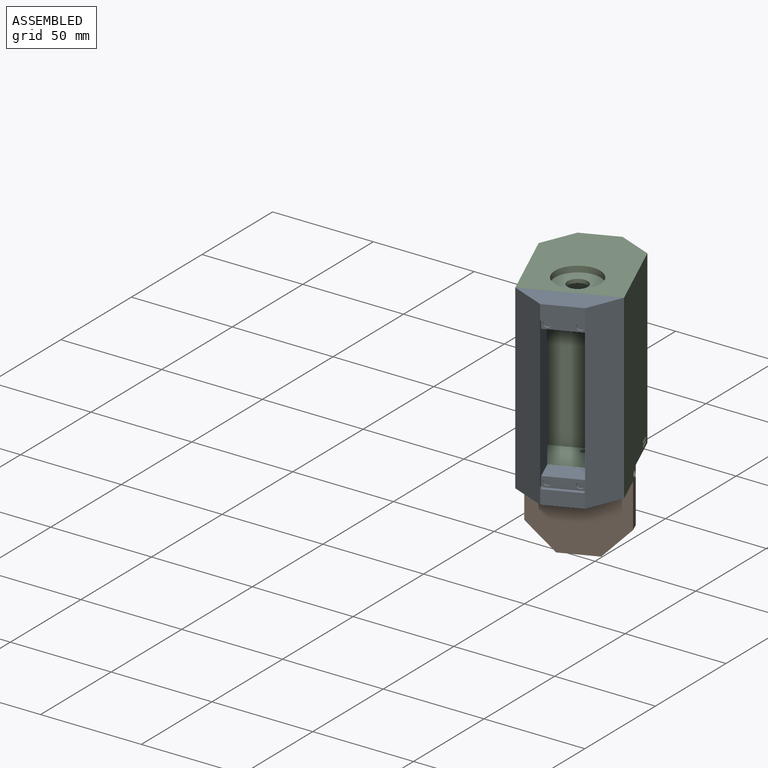
[diagram: assembled view]
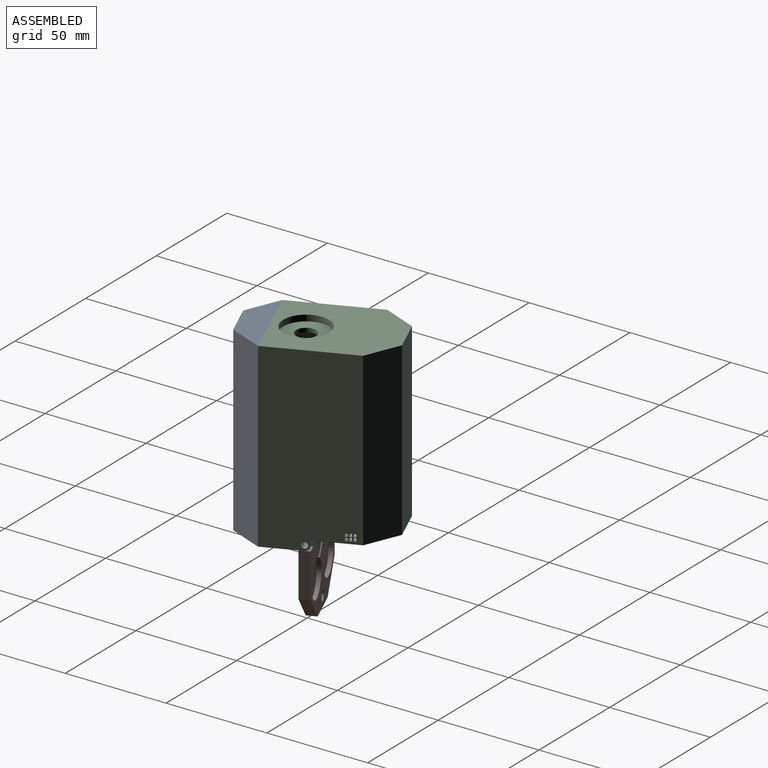
[diagram: assembled view, second angle]
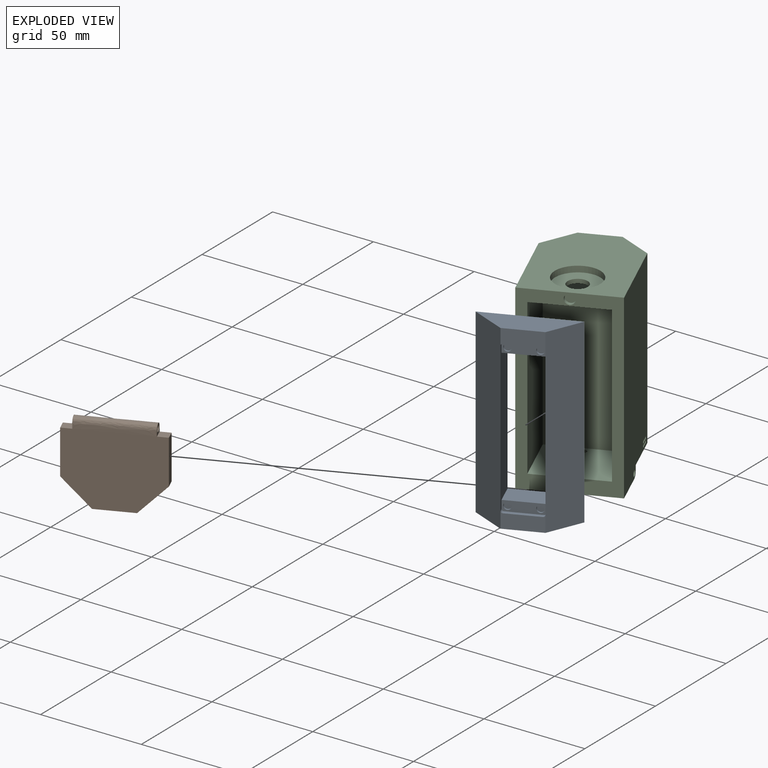
[diagram: exploded view]
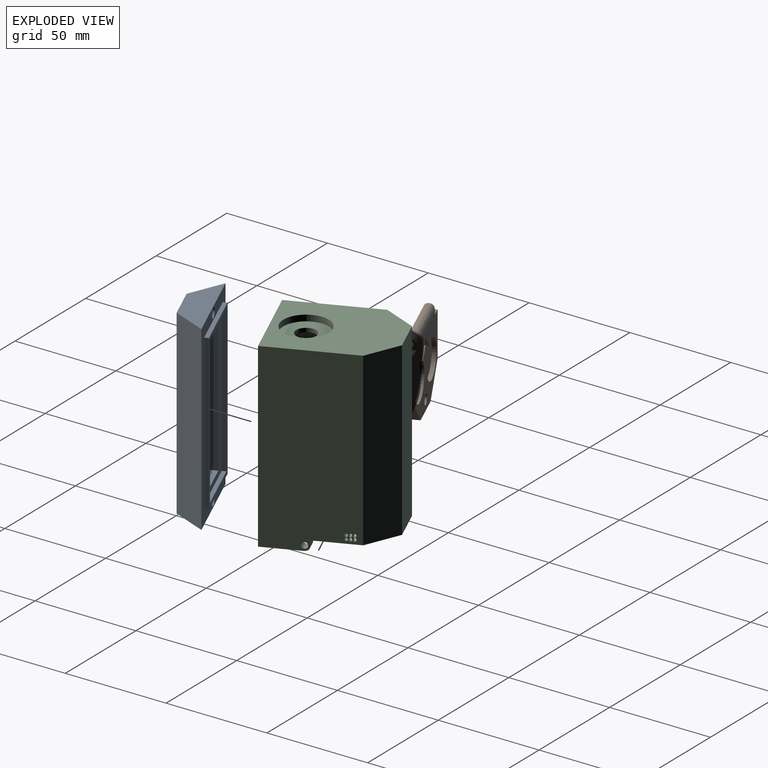
[diagram: exploded view, second angle]
ASSEMBLY  parts=3 mates=2
PART A: 41 faces, bbox 41.8x24.5x90 mm
  f0: plane 90x41.82mm, normal (-0.38,0.92,0), area 1341.6mm2, adj f2,f3,f5,f7,f28,f29,f30,f35
  f1: plane 17.32x8mm, normal (0.38,-0.92,0), area 131.7mm2, adj f3,f5,f7,f16,f17,f18
  f2: plane 41.82x24.5mm, normal (0,0,-1), area 424.4mm2, adj f0,f3,f4,f5
  f3: plane 90x17.32mm, normal (-0.38,-0.92,0), area 1687.5mm2, adj f0,f1,f2,f4,f7,f8
  f4: plane 17.32x8mm, normal (0.38,-0.92,0), area 131.7mm2, adj f2,f3,f5,f12,f13,f14
  f5: plane 90x17.32mm, normal (0.92,-0.38,0), area 1687.5mm2, adj f0,f1,f2,f4,f7,f10
  f6: plane 72.8x28.7mm, normal (-0.38,0.92,0), area 1024.1mm2, adj f8,f9,f10,f11,f31,f32,f33,f34
  f7: plane 41.82x24.5mm, normal (0,0,1), area 424.4mm2, adj f0,f1,f3,f5
  f8: plane 74x12.25mm, normal (0.92,0.38,0), area 891mm2, adj f3,f6,f9,f11,f12,f15,f18,f19
  f9: plane 21.63x17.58mm, normal (0,0,1), area 211.1mm2, adj f6,f8,f10,f15
  f10: plane 74x12.25mm, normal (-0.92,-0.38,0), area 891mm2, adj f5,f6,f9,f11,f14,f15,f16,f19
  f11: plane 21.63x17.58mm, normal (0,0,-1), area 211.1mm2, adj f6,f8,f10,f19
  f12: cylinder r=1mm len=2.23mm, axis (0.38,-0.92,0), area 3.1mm2, adj f4,f8,f13,f15
  f13: plane 16.24x8.26mm, normal (0,0,1), area 33.5mm2, adj f4,f12,f14,f15
  f14: cylinder r=1mm len=2.23mm, axis (0.38,-0.92,0), area 3.1mm2, adj f4,f10,f13,f15
  f15: plane 17.32x7.18mm, normal (0.38,-0.92,0), area 74.1mm2, adj f8,f9,f10,f12,f13,f14,f24,f26
  f16: cylinder r=1mm len=2.23mm, axis (0.38,-0.92,0), area 3.1mm2, adj f1,f10,f17,f19
  f17: plane 16.24x8.26mm, normal (0,0,-1), area 33.5mm2, adj f1,f16,f18,f19
  f18: cylinder r=1mm len=2.23mm, axis (0.38,-0.92,0), area 3.1mm2, adj f1,f8,f17,f19
  f19: plane 17.32x7.18mm, normal (0.38,-0.92,0), area 74.1mm2, adj f8,f10,f11,f16,f17,f18,f20,f22
  f20: cylinder r=1.75mm len=3.62mm, axis (0.38,-0.92,0), area 11mm2, adj f19,f21
  f21: plane 3.5x3.23mm, normal (0.38,-0.92,0), area 9.6mm2, adj f20
  f22: cylinder r=1.75mm len=3.62mm, axis (0.38,-0.92,0), area 11mm2, adj f19,f23
  f23: plane 3.5x3.23mm, normal (0.38,-0.92,0), area 9.6mm2, adj f22
  f24: cylinder r=1.75mm len=3.62mm, axis (0.38,-0.92,0), area 11mm2, adj f15,f25
  f25: plane 3.5x3.23mm, normal (0.38,-0.92,0), area 9.6mm2, adj f24
  f26: cylinder r=1.75mm len=3.62mm, axis (0.38,-0.92,0), area 11mm2, adj f15,f27
  f27: plane 3.5x3.23mm, normal (0.38,-0.92,0), area 9.6mm2, adj f26
  f28: plane 76.8x1.85mm, normal (0.92,0.38,0), area 153.6mm2, adj f0,f29,f35,f36
  f29: plane 33.16x15.27mm, normal (0,0,-1), area 70.1mm2, adj f0,f28,f30,f36
  f30: plane 76.8x1.85mm, normal (-0.92,-0.38,0), area 153.6mm2, adj f0,f29,f35,f36
  f31: plane 29.47x13.74mm, normal (0,0,1), area 62.1mm2, adj f6,f32,f34,f36
  f32: plane 72.8x1.85mm, normal (-0.92,-0.38,0), area 145.6mm2, adj f6,f31,f33,f36
  f33: plane 29.47x13.74mm, normal (0,0,-1), area 62.1mm2, adj f6,f32,f34,f36
  f34: plane 72.8x1.85mm, normal (0.92,0.38,0), area 145.6mm2, adj f6,f31,f33,f36
  f35: plane 33.16x15.27mm, normal (0,0,1), area 70.1mm2, adj f0,f28,f30,f36
  f36: plane 76.8x32.4mm, normal (-0.38,0.92,0), area 431.5mm2, adj f28,f29,f30,f31,f32,f33,f34,f35
  f37: cylinder r=2.5mm len=5.38mm, axis (-0.38,0.92,0), area 31.4mm2, adj f0,f38
  f38: plane 5x4.62mm, normal (-0.38,0.92,0), area 19.6mm2, adj f37
  f39: cylinder r=2.5mm len=5.38mm, axis (-0.38,0.92,0), area 31.4mm2, adj f0,f40
  f40: plane 5x4.62mm, normal (-0.38,0.92,0), area 19.6mm2, adj f39
PART B: 24 faces, bbox 50.9x48.8x5.7 mm
  f0: plane 5x4.62mm, normal (0.38,-0.92,0), area 25mm2, adj f4,f6,f16,f19
  f1: plane 5x4.62mm, normal (0.38,-0.92,0), area 25mm2, adj f4,f7,f16,f20
  f2: cylinder r=9.15mm len=18.3mm, axis (0,0,-1), area 110.1mm2, adj f4,f11,f13,f14
  f3: cylinder r=9.15mm len=18.3mm, axis (0,0,-1), area 110.1mm2, adj f4,f11,f12,f15
  f4: plane 50.19x44.71mm, normal (0,0,1), area 828.8mm2, adj f0,f1,f2,f3,f5,f6,f7,f8
  f5: cylinder r=1.5mm len=2.7mm, axis (0,0,1), area 7.5mm2, adj f4,f11,f14,f15
  f6: plane 20.21x8.37mm, normal (0.92,0.38,0), area 109.4mm2, adj f0,f4,f10,f16
  f7: plane 20.21x8.37mm, normal (-0.92,-0.38,0), area 109.4mm2, adj f1,f4,f8,f16
  f8: plane 17.32x7.18mm, normal (-0.92,0.38,0), area 93.8mm2, adj f4,f7,f9,f16
  f9: plane 17.32x7.18mm, normal (-0.38,0.92,0), area 93.8mm2, adj f4,f8,f10,f16
  f10: plane 17.32x7.18mm, normal (0.38,0.92,0), area 93.8mm2, adj f4,f6,f9,f16
  f11: plane 39.21x27.02mm, normal (0,0,1), area 566.2mm2, adj f2,f3,f5,f12,f13,f14,f15
  f12: plane 6.41x2.71mm, normal (0.92,-0.39,0), area 13.9mm2, adj f3,f4,f11,f13
  f13: plane 6.5x2.75mm, normal (-0.39,-0.92,0), area 14.1mm2, adj f2,f4,f11,f12
  f14: plane 7.04x2.98mm, normal (0.39,0.92,0), area 15.3mm2, adj f2,f4,f5,f11
  f15: plane 7.26x3.07mm, normal (-0.92,0.39,0), area 15.8mm2, adj f3,f4,f5,f11
  f16: plane 50.19x44.71mm, normal (0,0,-1), area 1414.6mm2, adj f0,f1,f6,f7,f8,f9,f10,f22
  f17: cylinder r=2.5mm len=5mm, axis (0,0,1), area 31.4mm2, adj f4,f18
  f18: plane 5x5mm, normal (0,0,1), area 19.6mm2, adj f17
  f19: plane 5.73x5.35mm, normal (0.92,0.38,0), area 14.6mm2, adj f0,f21,f22,f23
  f20: plane 5.73x5.35mm, normal (-0.92,-0.38,0), area 14.6mm2, adj f1,f21,f22,f23
  f21: cylinder r=1.5mm len=33.73mm, axis (0.92,0.38,0), area 332.4mm2, adj f19,f20
  f22: bspline ~37.75x19.47mm, area 223.2mm2, adj f16,f19,f20,f23
  f23: bspline ~37.75x19.47mm, area 223.2mm2, adj f4,f19,f20,f22
PART C: 58 faces, bbox 58.6x64.9x90 mm
  f0: plane 4.62x2mm, normal (-0.38,0.92,0), area 10mm2, adj f1,f31,f39,f45
  f1: plane 90x40.42mm, normal (-0.92,-0.38,0), area 3809mm2, adj f0,f11,f12,f14,f23,f31,f43,f45
  f2: cylinder r=9.15mm len=60mm, axis (0,0,-1), area 3438.9mm2, adj f16,f31,f46,f47,f48,f49,f50,f51
  f3: cylinder r=9.15mm len=60mm, axis (0,0,-1), area 3438.8mm2, adj f15,f31,f52,f53,f54,f55,f56,f57
  f4: plane 77x38.51mm, normal (0.92,0.38,0), area 2385.1mm2, adj f7,f14,f21,f26,f27,f29
  f5: cylinder r=10mm len=20mm, axis (0,0,-1), area 52mm2, adj f6,f27,f28
  f6: extruded ~11.69x10.94mm, area 25.8mm2, adj f5,f27,f28
  f7: plane 65x32.58mm, normal (0.38,-0.92,0), area 2292.3mm2, adj f4,f20,f26,f29
  f8: cylinder r=5mm len=10mm, axis (0,0,1), area 62.8mm2, adj f25,f28
  f9: plane 85x17.32mm, normal (0.38,0.92,0), area 1593.8mm2, adj f10,f13,f23,f31
  f10: plane 85x17.32mm, normal (-0.38,0.92,0), area 1593.8mm2, adj f9,f11,f23,f31
  f11: plane 85x17.32mm, normal (-0.92,0.38,0), area 1593.8mm2, adj f1,f10,f23,f31
  f12: plane 49.04x34.76mm, normal (0,0,-1), area 783.9mm2, adj f1,f13,f14,f39,f40,f41,f44,f45
  f13: plane 90x40.42mm, normal (0.92,0.38,0), area 3809mm2, adj f9,f12,f14,f23,f30,f31,f42,f44
  f14: plane 90x41.82mm, normal (0.38,-0.92,0), area 1319.2mm2, adj f1,f4,f12,f13,f20,f23,f26,f27
  f15: plane 18.3x18.3mm, normal (0,0,-1), area 242.6mm2, adj f3,f18
  f16: plane 18.3x18.3mm, normal (0,0,-1), area 242.6mm2, adj f2,f17
  f17: cylinder r=2.55mm len=7mm, axis (0,0,-1), area 112.2mm2, adj f16,f29
  f18: cylinder r=2.55mm len=7mm, axis (0,0,-1), area 112.2mm2, adj f15,f29
  f19: plane 13.5x12mm, normal (-0.38,-0.92,0), area 175.3mm2, adj f20,f22,f27,f29
  f20: plane 77x38.51mm, normal (-0.92,-0.38,0), area 2385.1mm2, adj f7,f14,f19,f26,f27,f29
  f21: plane 13.5x12mm, normal (0.92,-0.38,0), area 175.3mm2, adj f4,f22,f27,f29
  f22: plane 13.5x12mm, normal (0.38,-0.92,0), area 175.3mm2, adj f19,f21,f27,f29
  f23: plane 64.92x58.56mm, normal (0,0,1), area 2007.2mm2, adj f1,f9,f10,f11,f13,f14,f24
  f24: cylinder r=11.25mm len=22.5mm, axis (0,0,1), area 212.1mm2, adj f23,f25
  f25: plane 22.5x22.5mm, normal (0,0,1), area 319.1mm2, adj f8,f24
  f26: plane 43.68x40.29mm, normal (0,0,1), area 1015.7mm2, adj f4,f7,f14,f20,f32
  f27: plane 57.59x48.53mm, normal (0,0,-1), area 1333.9mm2, adj f4,f5,f6,f14,f19,f20,f21,f22
  f28: plane 28.47x20mm, normal (0,0,-1), area 315mm2, adj f5,f6,f8
  f29: plane 37.43x30.8mm, normal (0,0,1), area 663.9mm2, adj f4,f7,f17,f18,f19,f20,f21,f22
  f30: plane 4.62x2mm, normal (-0.38,0.92,0), area 10mm2, adj f13,f31,f40,f44
  f31: plane 50.19x47.41mm, normal (0,0,-1), area 1038.2mm2, adj f0,f1,f2,f3,f9,f10,f11,f13
  f32: cylinder r=1.5mm len=3mm, axis (0,0,-1), area 18.8mm2, adj f26,f31
  f33: cylinder r=2.5mm len=5.38mm, axis (0.38,-0.92,0), area 31.4mm2, adj f14,f34
  f34: plane 5x4.62mm, normal (0.38,-0.92,0), area 19.6mm2, adj f33
  f35: cylinder r=2.5mm len=5.38mm, axis (0.38,-0.92,0), area 31.4mm2, adj f14,f36
  f36: plane 5x4.62mm, normal (0.38,-0.92,0), area 19.6mm2, adj f35
  f37: cylinder r=2.5mm len=5mm, axis (0,0,-1), area 31.4mm2, adj f31,f38
  f38: plane 5x5mm, normal (0,0,-1), area 19.6mm2, adj f37
  f39: plane 5x4.62mm, normal (0.92,0.38,0), area 16.4mm2, adj f0,f12,f31,f41,f43,f45
  f40: plane 5x4.62mm, normal (-0.92,-0.38,0), area 16.4mm2, adj f12,f30,f31,f41,f42,f44
  f41: plane 32.58x13.5mm, normal (-0.38,0.92,0), area 176.3mm2, adj f12,f31,f39,f40
  f42: cylinder r=1.5mm len=5.77mm, axis (-0.92,-0.38,0), area 47.1mm2, adj f13,f40
  f43: cylinder r=1.5mm len=5.77mm, axis (0.92,0.38,0), area 47.1mm2, adj f1,f39
  f44: bspline ~6.23x4.88mm, area 24.3mm2, adj f12,f13,f30,f40
  f45: bspline ~6.23x4.88mm, area 24.3mm2, adj f0,f1,f12,f39
  f46: cylinder r=0.75mm len=3.1mm, axis (0.92,0.38,0), area 11.8mm2, adj f2,f13
  f47: cylinder r=0.75mm len=2.77mm, axis (0.92,0.38,0), area 10.6mm2, adj f2,f13
  f48: cylinder r=0.75mm len=3.1mm, axis (0.92,0.38,0), area 11.8mm2, adj f2,f13
  f49: cylinder r=0.75mm len=2.67mm, axis (0.92,0.38,0), area 10.4mm2, adj f2,f13
  f50: cylinder r=0.75mm len=2.67mm, axis (0.92,0.38,0), area 10.4mm2, adj f2,f13
  f51: cylinder r=0.75mm len=2.77mm, axis (0.92,0.38,0), area 10.6mm2, adj f2,f13
  f52: cylinder r=0.75mm len=2.77mm, axis (-0.92,-0.38,0), area 10.6mm2, adj f1,f3
  f53: cylinder r=0.75mm len=2.77mm, axis (-0.92,-0.38,0), area 10.6mm2, adj f1,f3
  f54: cylinder r=0.75mm len=3.1mm, axis (-0.92,-0.38,0), area 11.8mm2, adj f1,f3
  f55: cylinder r=0.75mm len=2.67mm, axis (-0.92,-0.38,0), area 10.4mm2, adj f1,f3
  f56: cylinder r=0.75mm len=2.67mm, axis (-0.92,-0.38,0), area 10.4mm2, adj f1,f3
  f57: cylinder r=0.75mm len=3.1mm, axis (-0.92,-0.38,0), area 11.8mm2, adj f1,f3
PLACE A t=(-128.05,92.52,-17.34)mm
PLACE B rot(axis=(-0.92,-0.38,0),90deg) t=(-115.79,70.44,-29.82)mm
PLACE C t=(-112.92,63.51,-17.32)mm
MATE fastened A.f6 <-> C.f14  axis (-0.38,0.92,0) through (-99.76,31.76,26.65)mm
MATE revolute B.f21 <-> C.f42  axis (0.92,0.38,0) through (-90.89,56.4,-14.82)mm
